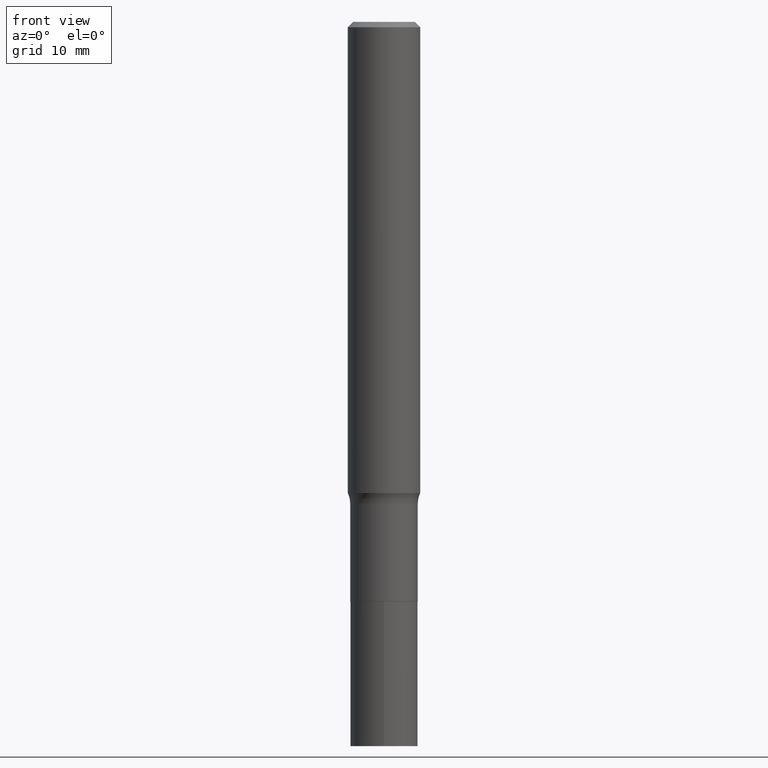
[diagram: clean part render]
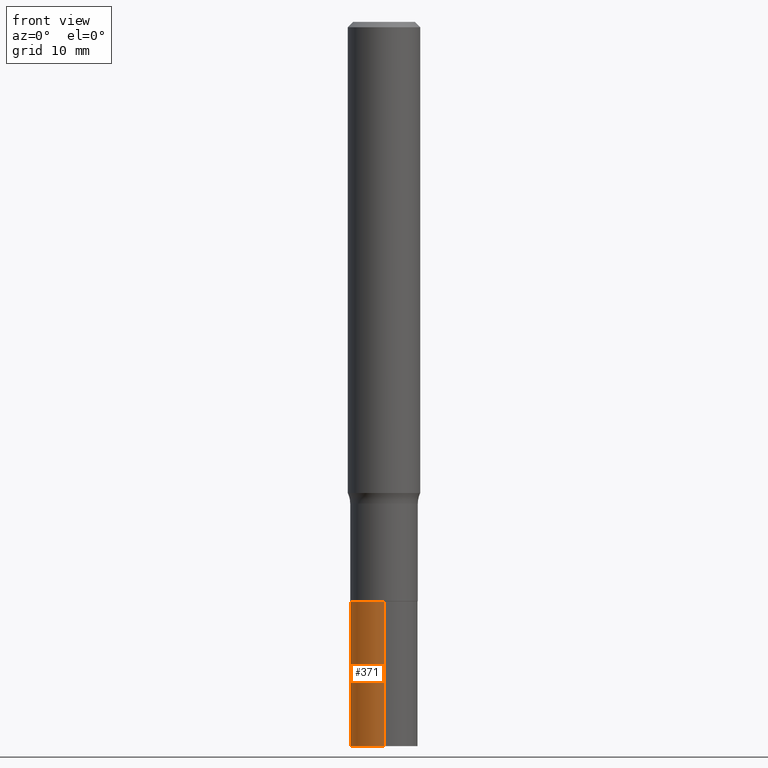
[diagram: same view with one face highlighted and labeled with its STEP entity id]
A machine part, front view. The second image highlights one B-rep face of the part: STEP entity #371.
In plain terms, the highlighted cylindrical surface (edge-blend (fillet) strip) has radius 2.8003 mm, axis along (-0, 0, 1).
Its self-contained STEP definition (entity closure, byte-faithful):
#10 = FACE_OUTER_BOUND ( 'NONE', #199, .T. ) ;
#11 = LINE ( 'NONE', #342, #268 ) ;
#63 = EDGE_CURVE ( 'NONE', #417, #168, #468, .T. ) ;
#93 = CARTESIAN_POINT ( 'NONE',  ( 7.833733661755681459E-16, 0.1102499999999933950, -1.890200000000000546 ) ) ;
#106 = DIRECTION ( 'NONE',  ( -2.478945423530014988E-29, 3.443540917434548382E-15, 1.000000000000000000 ) ) ;
#115 = EDGE_CURVE ( 'NONE', #372, #276, #452, .T. ) ;
#127 = ORIENTED_EDGE ( 'NONE', *, *, #185, .F. ) ;
#132 = CARTESIAN_POINT ( 'NONE',  ( 4.622425137451146006E-29, -6.599598026681314782E-15, -1.890200000000000324 ) ) ;
#150 = DIRECTION ( 'NONE',  ( -6.982962677686266711E-15, -1.000000000000000000, 2.477866660919966807E-15 ) ) ;
#161 = AXIS2_PLACEMENT_3D ( 'NONE', #132, #241, #275 ) ;
#162 = ORIENTED_EDGE ( 'NONE', *, *, #380, .T. ) ;
#164 = ORIENTED_EDGE ( 'NONE', *, *, #115, .F. ) ;
#165 = DIRECTION ( 'NONE',  ( -2.478945423530014988E-29, 3.443540917434547988E-15, 1.000000000000000000 ) ) ;
#167 = CARTESIAN_POINT ( 'NONE',  ( 7.833733661755623280E-16, 0.1102499999999917574, -2.362200000000000966 ) ) ;
#168 = VERTEX_POINT ( 'NONE', #370 ) ;
#175 = VECTOR ( 'NONE', #296, 39.37007874015748143 ) ;
#185 = EDGE_CURVE ( 'NONE', #417, #372, #192, .T. ) ;
#192 = LINE ( 'NONE', #400, #175 ) ;
#199 = EDGE_LOOP ( 'NONE', ( #127, #312, #162, #164 ) ) ;
#215 = DIRECTION ( 'NONE',  ( -6.982962677686266711E-15, -1.000000000000000000, 2.477866660919966807E-15 ) ) ;
#241 = DIRECTION ( 'NONE',  ( -2.478945423530014988E-29, 3.443540917434548382E-15, 1.000000000000000000 ) ) ;
#268 = VECTOR ( 'NONE', #165, 39.37007874015748143 ) ;
#275 = DIRECTION ( 'NONE',  ( -6.982962677686266711E-15, -1.000000000000000000, 2.477866660919966807E-15 ) ) ;
#276 = VERTEX_POINT ( 'NONE', #337 ) ;
#292 = DIRECTION ( 'NONE',  ( -2.478945423530014988E-29, 3.443540917434548382E-15, 1.000000000000000000 ) ) ;
#296 = DIRECTION ( 'NONE',  ( -2.478945423530014988E-29, 3.443540917434547988E-15, 1.000000000000000000 ) ) ;
#312 = ORIENTED_EDGE ( 'NONE', *, *, #63, .T. ) ;
#337 = CARTESIAN_POINT ( 'NONE',  ( -7.698716352148647328E-16, -0.1102500000000066066, -1.890199999999999880 ) ) ;
#342 = CARTESIAN_POINT ( 'NONE',  ( -7.698716352148647328E-16, -0.1102500000000066066, -1.890199999999999880 ) ) ;
#345 = CYLINDRICAL_SURFACE ( 'NONE', #161, 0.1102500000000000008 ) ;
#362 = CARTESIAN_POINT ( 'NONE',  ( 4.622425137451146006E-29, -6.599598026681314782E-15, -1.890200000000000324 ) ) ;
#370 = CARTESIAN_POINT ( 'NONE',  ( -7.698716352148528999E-16, -0.1102500000000082164, -2.362200000000000077 ) ) ;
#371 = ADVANCED_FACE ( 'NONE', ( #10 ), #345, .T. ) ;
#372 = VERTEX_POINT ( 'NONE', #93 ) ;
#380 = EDGE_CURVE ( 'NONE', #168, #276, #11, .T. ) ;
#394 = CARTESIAN_POINT ( 'NONE',  ( 5.792487377357313463E-29, -8.224949339710422363E-15, -2.362200000000000522 ) ) ;
#400 = CARTESIAN_POINT ( 'NONE',  ( 7.833733661755566088E-16, 0.1102499999999933950, -1.890200000000000546 ) ) ;
#417 = VERTEX_POINT ( 'NONE', #167 ) ;
#441 = AXIS2_PLACEMENT_3D ( 'NONE', #362, #292, #150 ) ;
#452 = CIRCLE ( 'NONE', #441, 0.1102500000000000008 ) ;
#460 = AXIS2_PLACEMENT_3D ( 'NONE', #394, #106, #215 ) ;
#468 = CIRCLE ( 'NONE', #460, 0.1102499999999999869 ) ;